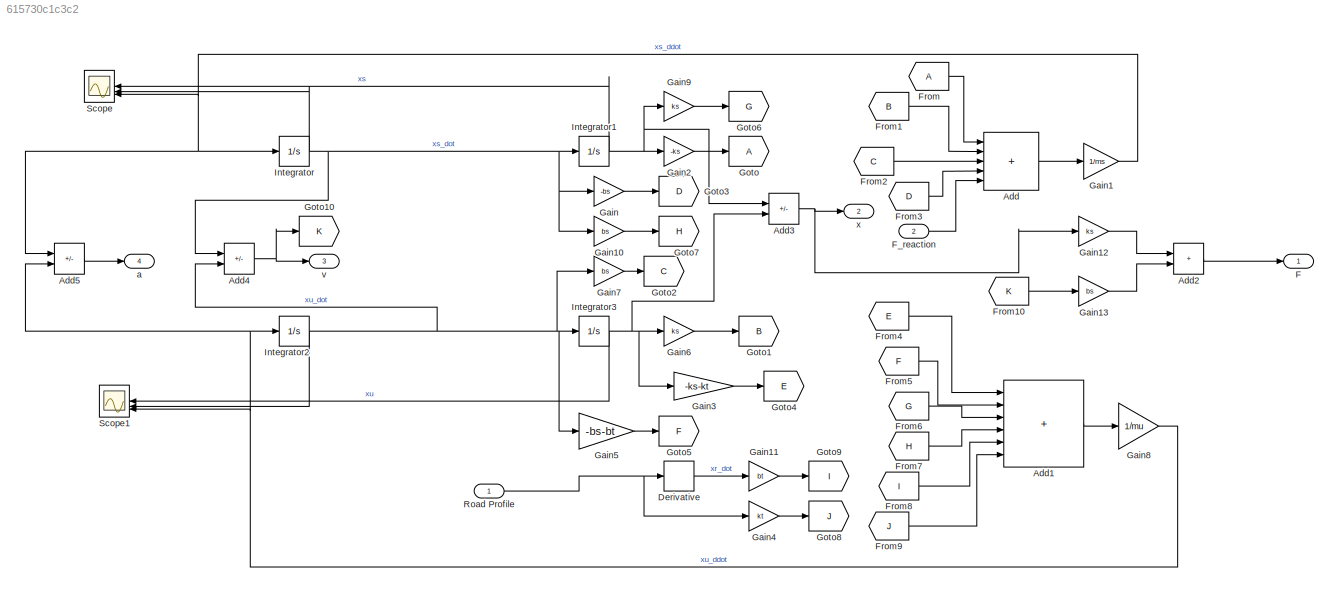
MODEL slx_615730c1c3c2
KIND model
CONFIG AbsTol = auto
CONFIG EnableMultiTasking = off
CONFIG FixedStep = auto
CONFIG MaxStep = auto
CONFIG MinStep = auto
CONFIG RelTol = 1e-3
CONFIG SampleTimeConstraint = Unconstrained
CONFIG SolverName = VariableStepAuto
CONFIG StartTime = 0.0
CONFIG StopTime = 10.0
WORKSPACE source: mxarray member
WORKSPACE bs = 1500
WORKSPACE bt = 10
WORKSPACE ks = 20000
WORKSPACE kt = 190000
WORKSPACE ms = 400
WORKSPACE mu = 48
BLOCK [Sum] Add
  IconShape = rectangular
  Inputs = +++++
BLOCK [Sum] Add1
  IconShape = rectangular
  Inputs = ++++++
BLOCK [Sum] Add2
  IconShape = rectangular
BLOCK [Sum] Add3
  IconShape = rectangular
  Inputs = +-
BLOCK [Sum] Add4
  IconShape = rectangular
  Inputs = +-
BLOCK [Sum] Add5
  IconShape = rectangular
  Inputs = +-
BLOCK [Derivative] Derivative
BLOCK [Outport] F
BLOCK [Inport] F_reaction
  OutMax = [100000000000000000000000000]
  OutMin = [0.000000000000000001]
  Port = 2
BLOCK [From] From
BLOCK [From] From1
  GotoTag = B
BLOCK [From] From10
  GotoTag = K
BLOCK [From] From2
  GotoTag = C
BLOCK [From] From3
  GotoTag = D
BLOCK [From] From4
  GotoTag = E
BLOCK [From] From5
  GotoTag = F
BLOCK [From] From6
  GotoTag = G
BLOCK [From] From7
  GotoTag = H
BLOCK [From] From8
  GotoTag = I
BLOCK [From] From9
  GotoTag = J
BLOCK [Gain] Gain
  Gain = -bs
BLOCK [Gain] Gain1
  Gain = 1/ms
BLOCK [Gain] Gain10
  Gain = bs
BLOCK [Gain] Gain11
  Gain = bt
BLOCK [Gain] Gain12
  Gain = ks
BLOCK [Gain] Gain13
  Gain = bs
BLOCK [Gain] Gain2
  Gain = -ks
BLOCK [Gain] Gain3
  Gain = -ks-kt
BLOCK [Gain] Gain4
  Gain = kt
BLOCK [Gain] Gain5
  Gain = -bs-bt
BLOCK [Gain] Gain6
  Gain = ks
BLOCK [Gain] Gain7
  Gain = bs
BLOCK [Gain] Gain8
  Gain = 1/mu
BLOCK [Gain] Gain9
  Gain = ks
BLOCK [Goto] Goto
BLOCK [Goto] Goto1
  GotoTag = B
BLOCK [Goto] Goto10
  GotoTag = K
BLOCK [Goto] Goto2
  GotoTag = C
BLOCK [Goto] Goto3
  GotoTag = D
BLOCK [Goto] Goto4
  GotoTag = E
BLOCK [Goto] Goto5
  GotoTag = F
BLOCK [Goto] Goto6
  GotoTag = G
BLOCK [Goto] Goto7
  GotoTag = H
BLOCK [Goto] Goto8
  GotoTag = J
BLOCK [Goto] Goto9
  GotoTag = I
BLOCK [Integrator] Integrator
BLOCK [Integrator] Integrator1
BLOCK [Integrator] Integrator2
BLOCK [Integrator] Integrator3
BLOCK [Inport] Road Profile
BLOCK [Scope] Scope
  ActiveDisplayYMaximum = 7.874735317035757
  ActiveDisplayYMinimum = -4.4621453213775162
  Floating = off
  GraphicalSettings = {"AxesScalingProperties":{"AlignXAxis":"Center","AlignYAxis":"Center","AutoScaleXAxisLimits":false,"AxesScaling":"Manual","AxesScalingNumUpdates":10,"ExpandOnly":true,"ScaleAxesLimitsAtStop":false,"XAxisDataRange":100,"YAxisDataRange":80},"DisplayProperties":{"ColorOrder":["auto","auto","auto","auto","auto","auto","auto","auto","auto","auto","auto","auto","auto","auto","auto","auto","auto","auto",...<+2220ch>
  MultipleDisplayCache = [{"MaxYLimMag":23.946583789982604,"MaxYLimReal":7.874735317035757,"MinYLimMag":0,"MinYLimReal":-4.4621453213775162,"PlotAsMagnitudePhase":false,"ShowGrid":true,"ShowLegend":true,"Title":"%<SignalLabel>","YLabel":""}]
  NameLocation = top
  NumInputPorts = 3
  ScopeFrameLocation = window
  ShowLegend = on
  WasSavedAsWebScope = on
  WindowPosition = [9.000000,9.000000,1424.000000,831.000000,]
BLOCK [Scope] Scope1
  ActiveDisplayYMaximum = 1
  ActiveDisplayYMinimum = -1
  DataLoggingVariableName = ScopeData1
  Floating = off
  GraphicalSettings = {"Style":{"BackgroundColor":[0.12941176470588237,0.12941176470588237,0.12941176470588237],"AxesColor":[0.07058823529411765,0.07058823529411765,0.07058823529411765],"LabelsColor":[0.8509803921568627,0.8509803921568627,0.8509803921568627],"PreserveColors":false,"Visible":[true,true,true],"LineStyle":["-","-","-"],"LineWidth":[1.5,1.5,1.5],"BarWidth":[0.9,0.9,0.9],"LineColor":["auto","auto","auto"],"...<+2209ch>
  MultipleDisplayCache = [{"MaxYLimMag":1,"MaxYLimReal":1,"MinYLimMag":0,"MinYLimReal":-1,"PlotAsMagnitudePhase":false,"ShowGrid":true,"ShowLegend":false,"Title":"%<SignalLabel>","YLabel":""}]
  NameLocation = top
  NumInputPorts = 3
  ScopeFrameLocation = window
  WasSavedAsWebScope = on
  WindowPosition = [680.000000,330.000000,560.000000,420.000000,]
BLOCK [Outport] a
  Port = 4
BLOCK [Outport] v
  Port = 3
BLOCK [Outport] x
  Port = 2
LINE Add1:1 -> Gain8:1
LINE Add2:1 -> F:1
NET Add3:1 -> Gain12:1, x:1
NET Add4:1 -> Goto10:1, v:1
LINE Add5:1 -> a:1
LINE Add:1 -> Gain1:1
LINE Derivative:1 -> Gain11:1
LINE F_reaction:1 -> Add:5
LINE From10:1 -> Gain13:1
LINE From1:1 -> Add:2
LINE From2:1 -> Add:3
LINE From3:1 -> Add:4
LINE From4:1 -> Add1:1
LINE From5:1 -> Add1:2
LINE From6:1 -> Add1:3
LINE From7:1 -> Add1:4
LINE From8:1 -> Add1:5
LINE From9:1 -> Add1:6
LINE From:1 -> Add:1
LINE Gain10:1 -> Goto7:1
LINE Gain11:1 -> Goto9:1
LINE Gain12:1 -> Add2:1
LINE Gain13:1 -> Add2:2
NET Gain1:1 -> Add5:1, Integrator:1, Scope:3
LINE Gain2:1 -> Goto:1
LINE Gain3:1 -> Goto4:1
LINE Gain4:1 -> Goto8:1
LINE Gain5:1 -> Goto5:1
LINE Gain6:1 -> Goto1:1
LINE Gain7:1 -> Goto2:1
NET Gain8:1 -> Add5:2, Integrator2:1, Scope1:3
LINE Gain9:1 -> Goto6:1
LINE Gain:1 -> Goto3:1
NET Integrator1:1 -> Add3:1, Gain2:1, Gain9:1, Scope:1
NET Integrator2:1 -> Add4:2, Gain5:1, Gain7:1, Integrator3:1, Scope1:2
NET Integrator3:1 -> Add3:2, Gain3:1, Gain6:1, Scope1:1
NET Integrator:1 -> Add4:1, Gain10:1, Gain:1, Integrator1:1, Scope:2
NET Road Profile:1 -> Derivative:1, Gain4:1
note: NET lines group one-source signal fan-out (src -> all destinations, sorted); 1:1 wires keep LINE
